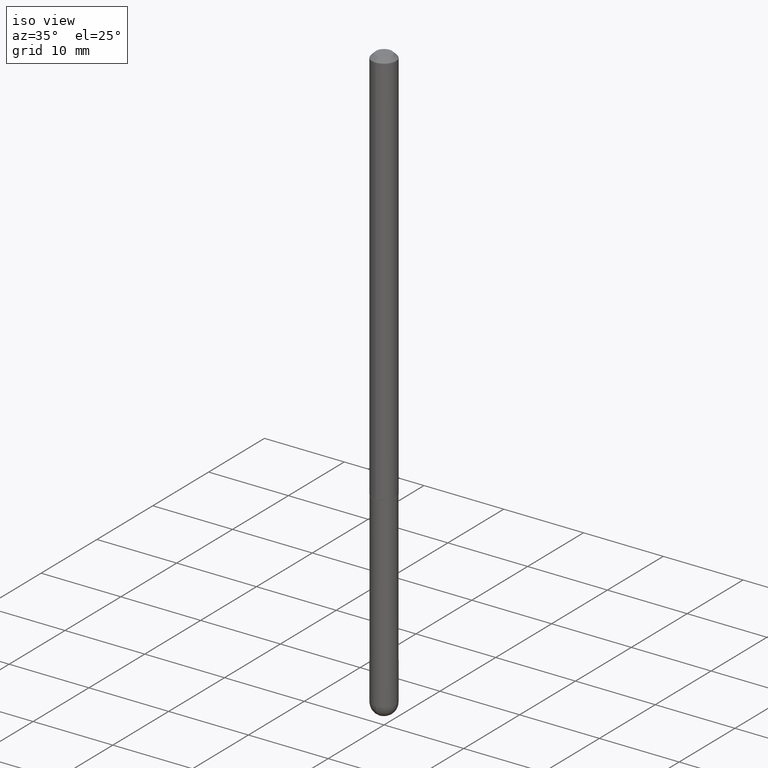
[diagram: clean part render]
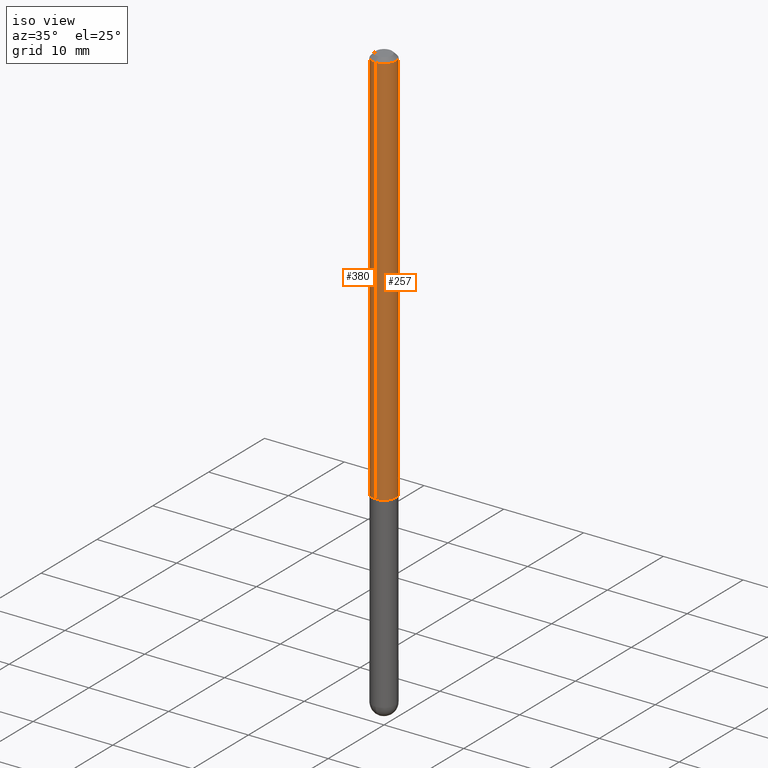
[diagram: same view with one multi-face feature highlighted, each face labeled with its STEP entity id]
A machine part, iso view. The highlighted faces form ONE feature: a constant-radius fillet chain: 2 tangent blend faces with common blend radius 1.4999 mm. The faces share edges in the B-rep.
Their STEP definitions:
[1] entity #257 (Cylinder):
#1 = DIRECTION ( 'NONE',  ( -6.982962677686265922E-15, -1.000000000000000000, 3.481260124123203654E-15 ) ) ;
#2 = VECTOR ( 'NONE', #283, 39.37007874015748143 ) ;
#5 = EDGE_LOOP ( 'NONE', ( #186, #394, #216, #212 ) ) ;
#26 = EDGE_CURVE ( 'NONE', #89, #182, #248, .T. ) ;
#47 = DIRECTION ( 'NONE',  ( -6.982962677686265922E-15, -1.000000000000000000, 4.626330217890353559E-15 ) ) ;
#57 = CIRCLE ( 'NONE', #73, 0.05905000000000020649 ) ;
#67 = VECTOR ( 'NONE', #341, 39.37007874015748143 ) ;
#73 = AXIS2_PLACEMENT_3D ( 'NONE', #366, #362, #47 ) ;
#75 = DIRECTION ( 'NONE',  ( -2.452606242276133797E-29, 3.481260124123203654E-15, 1.000000000000000000 ) ) ;
#89 = VERTEX_POINT ( 'NONE', #147 ) ;
#96 = CYLINDRICAL_SURFACE ( 'NONE', #122, 0.05905000000000010935 ) ;
#110 = VERTEX_POINT ( 'NONE', #143 ) ;
#122 = AXIS2_PLACEMENT_3D ( 'NONE', #221, #164, #1 ) ;
#143 = CARTESIAN_POINT ( 'NONE',  ( 4.123439461173745750E-16, 0.05904999999999994975, -0.02000000000000027450 ) ) ;
#144 = CARTESIAN_POINT ( 'NONE',  ( 4.905212484552284025E-31, -6.962520248246431022E-17, -0.02000000000000006981 ) ) ;
#147 = CARTESIAN_POINT ( 'NONE',  ( -4.123439461173271448E-16, -0.05905000000000704824, -1.967499999999999361 ) ) ;
#161 = EDGE_CURVE ( 'NONE', #89, #305, #57, .T. ) ;
#164 = DIRECTION ( 'NONE',  ( -2.452606242276133797E-29, 3.481260124123203654E-15, 1.000000000000000000 ) ) ;
#182 = VERTEX_POINT ( 'NONE', #293 ) ;
#186 = ORIENTED_EDGE ( 'NONE', *, *, #161, .T. ) ;
#212 = ORIENTED_EDGE ( 'NONE', *, *, #26, .F. ) ;
#216 = ORIENTED_EDGE ( 'NONE', *, *, #404, .F. ) ;
#221 = CARTESIAN_POINT ( 'NONE',  ( 0.000000000000000000, 0.000000000000000000, 0.000000000000000000 ) ) ;
#248 = LINE ( 'NONE', #322, #2 ) ;
#256 = AXIS2_PLACEMENT_3D ( 'NONE', #144, #75, #263 ) ;
#257 = ADVANCED_FACE ( 'NONE', ( #313 ), #96, .T. ) ;
#263 = DIRECTION ( 'NONE',  ( -6.982962677686265922E-15, -1.000000000000000000, 3.469747663417776213E-15 ) ) ;
#283 = DIRECTION ( 'NONE',  ( -2.452606242276134078E-29, 3.481260124123204048E-15, 1.000000000000000000 ) ) ;
#293 = CARTESIAN_POINT ( 'NONE',  ( -4.051124067684085231E-16, -0.05905000000000008159, -0.01999999999999986511 ) ) ;
#305 = VERTEX_POINT ( 'NONE', #385 ) ;
#313 = FACE_OUTER_BOUND ( 'NONE', #5, .T. ) ;
#322 = CARTESIAN_POINT ( 'NONE',  ( -4.123439461173747722E-16, -0.05905000000000010935, 2.055684103294755676E-16 ) ) ;
#326 = EDGE_CURVE ( 'NONE', #305, #110, #383, .T. ) ;
#341 = DIRECTION ( 'NONE',  ( -2.452606242276134078E-29, 3.481260124123204048E-15, 1.000000000000000000 ) ) ;
#343 = CIRCLE ( 'NONE', #256, 0.05905000000000001914 ) ;
#362 = DIRECTION ( 'NONE',  ( -2.452606242276133797E-29, 3.481260124123203654E-15, 1.000000000000000000 ) ) ;
#366 = CARTESIAN_POINT ( 'NONE',  ( 4.825502781678292621E-29, -6.849379294212400691E-15, -1.967499999999999805 ) ) ;
#383 = LINE ( 'NONE', #412, #67 ) ;
#385 = CARTESIAN_POINT ( 'NONE',  ( 4.195754854663646379E-16, 0.05904999999999335780, -1.967500000000000027 ) ) ;
#394 = ORIENTED_EDGE ( 'NONE', *, *, #326, .T. ) ;
#404 = EDGE_CURVE ( 'NONE', #182, #110, #343, .T. ) ;
#412 = CARTESIAN_POINT ( 'NONE',  ( 4.195754854663398874E-16, 0.05905000000000010935, -2.055684103294755676E-16 ) ) ;
[2] entity #380 (Cylinder):
#2 = VECTOR ( 'NONE', #283, 39.37007874015748143 ) ;
#11 = DIRECTION ( 'NONE',  ( -6.982962677686265922E-15, -1.000000000000000000, 4.626330217890353559E-15 ) ) ;
#22 = AXIS2_PLACEMENT_3D ( 'NONE', #101, #197, #252 ) ;
#26 = EDGE_CURVE ( 'NONE', #89, #182, #248, .T. ) ;
#32 = CARTESIAN_POINT ( 'NONE',  ( 0.000000000000000000, 0.000000000000000000, 0.000000000000000000 ) ) ;
#46 = CIRCLE ( 'NONE', #22, 0.05905000000000001914 ) ;
#51 = CARTESIAN_POINT ( 'NONE',  ( 4.825502781678292621E-29, -6.849379294212400691E-15, -1.967499999999999805 ) ) ;
#67 = VECTOR ( 'NONE', #341, 39.37007874015748143 ) ;
#89 = VERTEX_POINT ( 'NONE', #147 ) ;
#101 = CARTESIAN_POINT ( 'NONE',  ( 4.905212484552284025E-31, -6.962520248246431022E-17, -0.02000000000000006981 ) ) ;
#105 = ORIENTED_EDGE ( 'NONE', *, *, #26, .T. ) ;
#110 = VERTEX_POINT ( 'NONE', #143 ) ;
#130 = DIRECTION ( 'NONE',  ( -6.982962677686265922E-15, -1.000000000000000000, 3.481260124123203654E-15 ) ) ;
#143 = CARTESIAN_POINT ( 'NONE',  ( 4.123439461173745750E-16, 0.05904999999999994975, -0.02000000000000027450 ) ) ;
#147 = CARTESIAN_POINT ( 'NONE',  ( -4.123439461173271448E-16, -0.05905000000000704824, -1.967499999999999361 ) ) ;
#160 = AXIS2_PLACEMENT_3D ( 'NONE', #32, #410, #130 ) ;
#178 = DIRECTION ( 'NONE',  ( -2.452606242276133797E-29, 3.481260124123203654E-15, 1.000000000000000000 ) ) ;
#182 = VERTEX_POINT ( 'NONE', #293 ) ;
#191 = CYLINDRICAL_SURFACE ( 'NONE', #160, 0.05905000000000010935 ) ;
#197 = DIRECTION ( 'NONE',  ( -2.452606242276133797E-29, 3.481260124123203654E-15, 1.000000000000000000 ) ) ;
#207 = EDGE_CURVE ( 'NONE', #305, #89, #267, .T. ) ;
#217 = FACE_OUTER_BOUND ( 'NONE', #243, .T. ) ;
#243 = EDGE_LOOP ( 'NONE', ( #389, #352, #105, #386 ) ) ;
#248 = LINE ( 'NONE', #322, #2 ) ;
#252 = DIRECTION ( 'NONE',  ( -6.982962677686265922E-15, -1.000000000000000000, 3.469747663417776213E-15 ) ) ;
#267 = CIRCLE ( 'NONE', #409, 0.05905000000000020649 ) ;
#283 = DIRECTION ( 'NONE',  ( -2.452606242276134078E-29, 3.481260124123204048E-15, 1.000000000000000000 ) ) ;
#293 = CARTESIAN_POINT ( 'NONE',  ( -4.051124067684085231E-16, -0.05905000000000008159, -0.01999999999999986511 ) ) ;
#305 = VERTEX_POINT ( 'NONE', #385 ) ;
#319 = EDGE_CURVE ( 'NONE', #110, #182, #46, .T. ) ;
#322 = CARTESIAN_POINT ( 'NONE',  ( -4.123439461173747722E-16, -0.05905000000000010935, 2.055684103294755676E-16 ) ) ;
#326 = EDGE_CURVE ( 'NONE', #305, #110, #383, .T. ) ;
#341 = DIRECTION ( 'NONE',  ( -2.452606242276134078E-29, 3.481260124123204048E-15, 1.000000000000000000 ) ) ;
#352 = ORIENTED_EDGE ( 'NONE', *, *, #207, .T. ) ;
#380 = ADVANCED_FACE ( 'NONE', ( #217 ), #191, .T. ) ;
#383 = LINE ( 'NONE', #412, #67 ) ;
#385 = CARTESIAN_POINT ( 'NONE',  ( 4.195754854663646379E-16, 0.05904999999999335780, -1.967500000000000027 ) ) ;
#386 = ORIENTED_EDGE ( 'NONE', *, *, #319, .F. ) ;
#389 = ORIENTED_EDGE ( 'NONE', *, *, #326, .F. ) ;
#409 = AXIS2_PLACEMENT_3D ( 'NONE', #51, #178, #11 ) ;
#410 = DIRECTION ( 'NONE',  ( -2.452606242276133797E-29, 3.481260124123203654E-15, 1.000000000000000000 ) ) ;
#412 = CARTESIAN_POINT ( 'NONE',  ( 4.195754854663398874E-16, 0.05905000000000010935, -2.055684103294755676E-16 ) ) ;